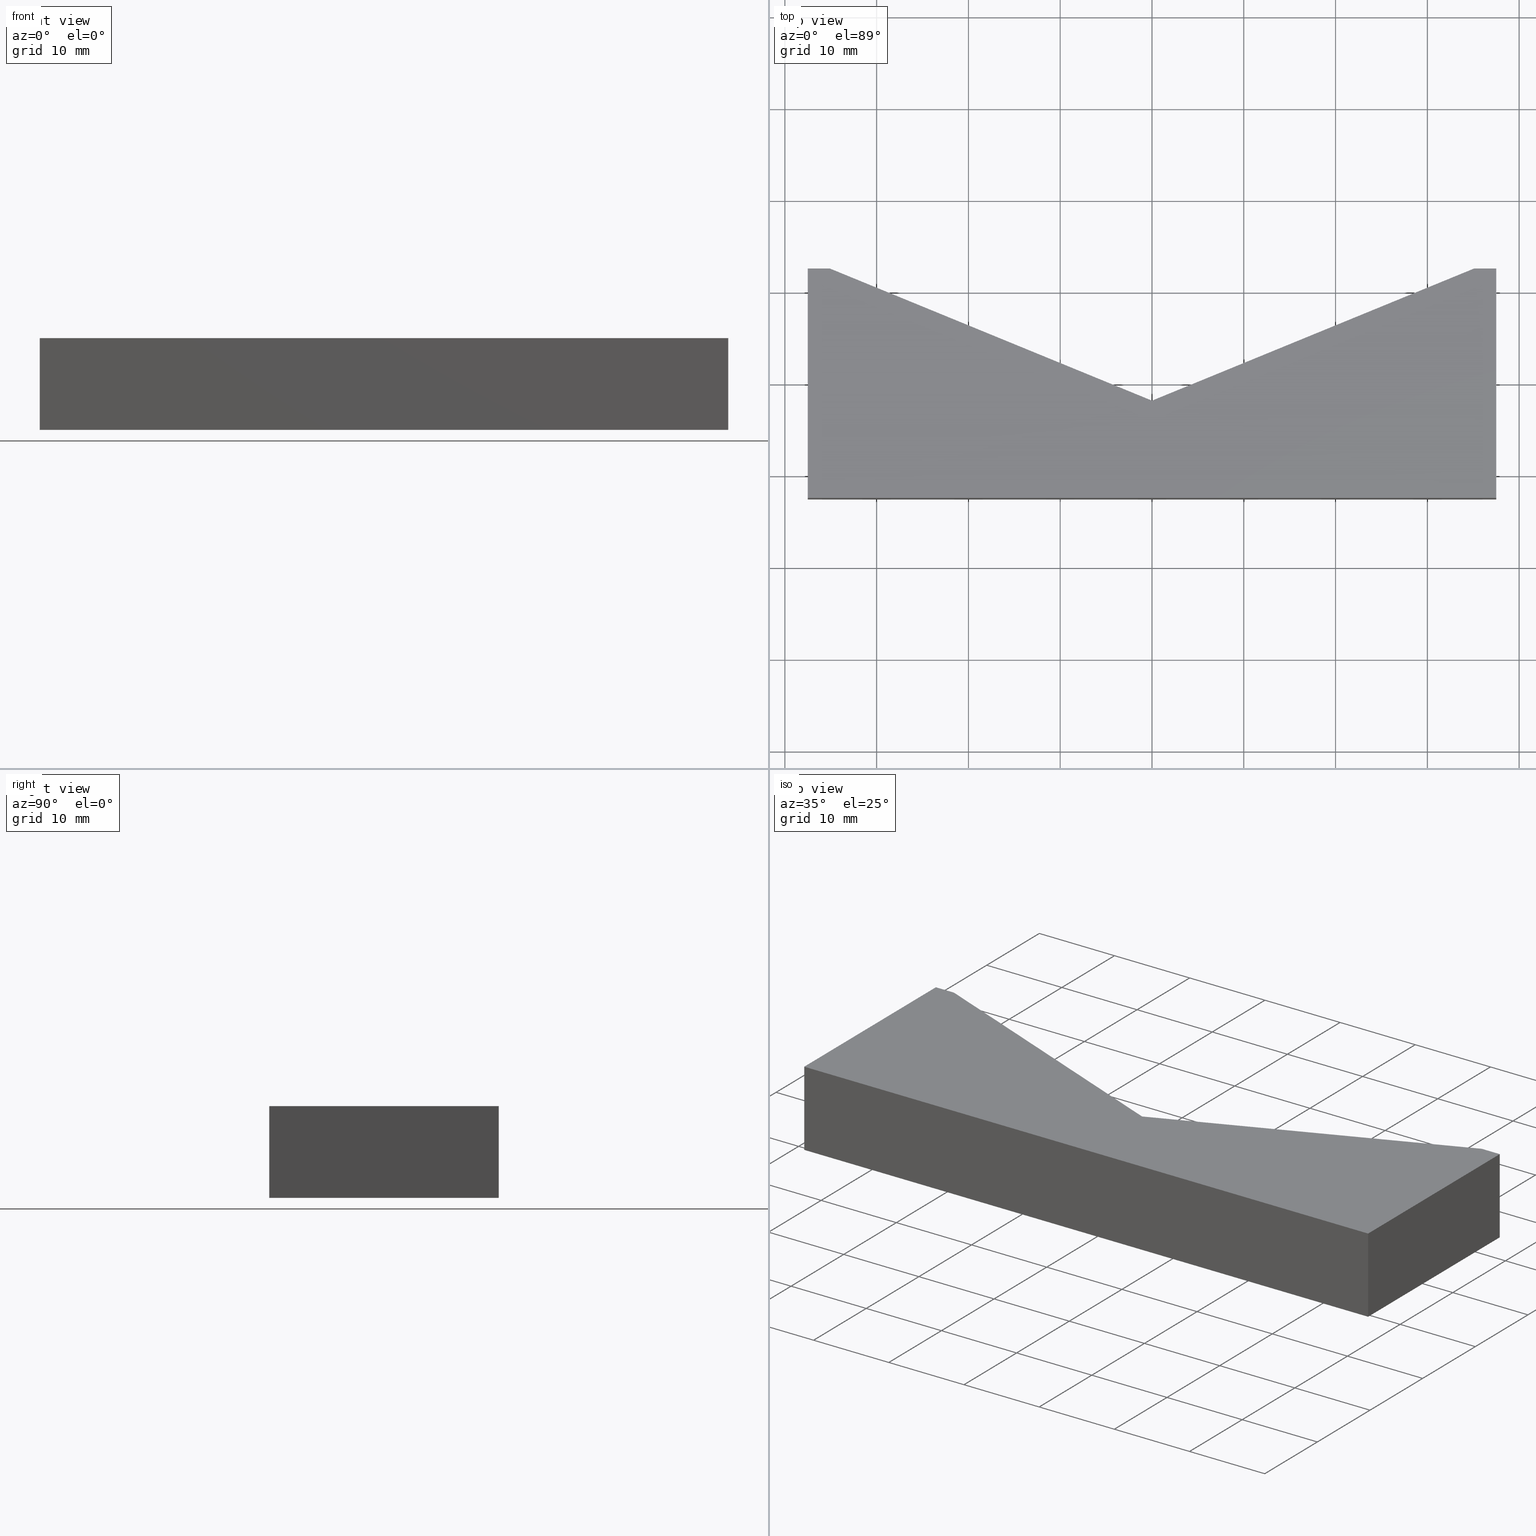
[diagram: canonical four-view strip — front | top / right | iso, engineering-drawing reading convention]
A machine part, canonical four-view strip (front | top / right | iso — engineering-drawing reading convention). The complete STEP part file that produces these views, byte-faithful:
ISO-10303-21;
HEADER;
/* Generated by software containing ST-Developer
 * from STEP Tools, Inc. (www.steptools.com) 
 */

FILE_DESCRIPTION(
/* description */ (''),
/* implementation_level */ '2;1');

FILE_NAME(
/* name */ 'E_3_01_10_18_00_WKZ-0167.stp',
/* time_stamp */ '2025-11-24T12:38:30+01:00',
/* author */ ('d.fischer'),
/* organization */ (''),
/* preprocessor_version */ 'ST-DEVELOPER v20',
/* originating_system */ 'Autodesk Inventor 2025',
/* authorisation */ '');

FILE_SCHEMA (('AUTOMOTIVE_DESIGN { 1 0 10303 214 3 1 1 }'));
ENDSEC;

DATA;
#10=MECHANICAL_DESIGN_GEOMETRIC_PRESENTATION_REPRESENTATION('',(#14,#15),
#292);
#11=SHAPE_REPRESENTATION_RELATIONSHIP('SRR','None',#299,#12);
#12=ADVANCED_BREP_SHAPE_REPRESENTATION('',(#13),#291);
#13=MANIFOLD_SOLID_BREP('Volumenk\X\F6rper1',#171);
#14=STYLED_ITEM('',(#309),#166);
#15=STYLED_ITEM('',(#308),#13);
#16=FACE_OUTER_BOUND('',#25,.T.);
#17=FACE_OUTER_BOUND('',#26,.T.);
#18=FACE_OUTER_BOUND('',#27,.T.);
#19=FACE_OUTER_BOUND('',#28,.T.);
#20=FACE_OUTER_BOUND('',#29,.T.);
#21=FACE_OUTER_BOUND('',#30,.T.);
#22=FACE_OUTER_BOUND('',#31,.T.);
#23=FACE_OUTER_BOUND('',#32,.T.);
#24=FACE_OUTER_BOUND('',#33,.T.);
#25=EDGE_LOOP('',(#111,#112,#113,#114,#115,#116,#117));
#26=EDGE_LOOP('',(#118,#119,#120,#121));
#27=EDGE_LOOP('',(#122,#123,#124,#125));
#28=EDGE_LOOP('',(#126,#127,#128,#129));
#29=EDGE_LOOP('',(#130,#131,#132,#133));
#30=EDGE_LOOP('',(#134,#135,#136,#137));
#31=EDGE_LOOP('',(#138,#139,#140,#141));
#32=EDGE_LOOP('',(#142,#143,#144,#145));
#33=EDGE_LOOP('',(#146,#147,#148,#149,#150,#151,#152));
#34=LINE('',#248,#55);
#35=LINE('',#250,#56);
#36=LINE('',#252,#57);
#37=LINE('',#254,#58);
#38=LINE('',#256,#59);
#39=LINE('',#258,#60);
#40=LINE('',#259,#61);
#41=LINE('',#263,#62);
#42=LINE('',#264,#63);
#43=LINE('',#265,#64);
#44=LINE('',#268,#65);
#45=LINE('',#269,#66);
#46=LINE('',#272,#67);
#47=LINE('',#273,#68);
#48=LINE('',#276,#69);
#49=LINE('',#277,#70);
#50=LINE('',#280,#71);
#51=LINE('',#281,#72);
#52=LINE('',#284,#73);
#53=LINE('',#285,#74);
#54=LINE('',#287,#75);
#55=VECTOR('',#207,10.);
#56=VECTOR('',#208,10.);
#57=VECTOR('',#209,10.);
#58=VECTOR('',#210,10.);
#59=VECTOR('',#211,10.);
#60=VECTOR('',#212,10.);
#61=VECTOR('',#213,10.);
#62=VECTOR('',#216,10.);
#63=VECTOR('',#217,10.);
#64=VECTOR('',#218,10.);
#65=VECTOR('',#221,10.);
#66=VECTOR('',#222,10.);
#67=VECTOR('',#225,10.);
#68=VECTOR('',#226,10.);
#69=VECTOR('',#229,10.);
#70=VECTOR('',#230,10.);
#71=VECTOR('',#233,10.);
#72=VECTOR('',#234,10.);
#73=VECTOR('',#237,10.);
#74=VECTOR('',#238,10.);
#75=VECTOR('',#241,10.);
#76=VERTEX_POINT('',#246);
#77=VERTEX_POINT('',#247);
#78=VERTEX_POINT('',#249);
#79=VERTEX_POINT('',#251);
#80=VERTEX_POINT('',#253);
#81=VERTEX_POINT('',#255);
#82=VERTEX_POINT('',#257);
#83=VERTEX_POINT('',#261);
#84=VERTEX_POINT('',#262);
#85=VERTEX_POINT('',#267);
#86=VERTEX_POINT('',#271);
#87=VERTEX_POINT('',#275);
#88=VERTEX_POINT('',#279);
#89=VERTEX_POINT('',#283);
#90=EDGE_CURVE('',#76,#77,#34,.T.);
#91=EDGE_CURVE('',#78,#76,#35,.T.);
#92=EDGE_CURVE('',#79,#78,#36,.T.);
#93=EDGE_CURVE('',#80,#79,#37,.T.);
#94=EDGE_CURVE('',#81,#80,#38,.T.);
#95=EDGE_CURVE('',#82,#81,#39,.T.);
#96=EDGE_CURVE('',#77,#82,#40,.T.);
#97=EDGE_CURVE('',#83,#84,#41,.T.);
#98=EDGE_CURVE('',#79,#84,#42,.T.);
#99=EDGE_CURVE('',#83,#78,#43,.T.);
#100=EDGE_CURVE('',#84,#85,#44,.T.);
#101=EDGE_CURVE('',#80,#85,#45,.T.);
#102=EDGE_CURVE('',#85,#86,#46,.T.);
#103=EDGE_CURVE('',#81,#86,#47,.T.);
#104=EDGE_CURVE('',#86,#87,#48,.T.);
#105=EDGE_CURVE('',#82,#87,#49,.T.);
#106=EDGE_CURVE('',#87,#88,#50,.T.);
#107=EDGE_CURVE('',#77,#88,#51,.T.);
#108=EDGE_CURVE('',#88,#89,#52,.T.);
#109=EDGE_CURVE('',#76,#89,#53,.T.);
#110=EDGE_CURVE('',#89,#83,#54,.T.);
#111=ORIENTED_EDGE('',*,*,#90,.F.);
#112=ORIENTED_EDGE('',*,*,#91,.F.);
#113=ORIENTED_EDGE('',*,*,#92,.F.);
#114=ORIENTED_EDGE('',*,*,#93,.F.);
#115=ORIENTED_EDGE('',*,*,#94,.F.);
#116=ORIENTED_EDGE('',*,*,#95,.F.);
#117=ORIENTED_EDGE('',*,*,#96,.F.);
#118=ORIENTED_EDGE('',*,*,#97,.T.);
#119=ORIENTED_EDGE('',*,*,#98,.F.);
#120=ORIENTED_EDGE('',*,*,#92,.T.);
#121=ORIENTED_EDGE('',*,*,#99,.F.);
#122=ORIENTED_EDGE('',*,*,#100,.T.);
#123=ORIENTED_EDGE('',*,*,#101,.F.);
#124=ORIENTED_EDGE('',*,*,#93,.T.);
#125=ORIENTED_EDGE('',*,*,#98,.T.);
#126=ORIENTED_EDGE('',*,*,#102,.T.);
#127=ORIENTED_EDGE('',*,*,#103,.F.);
#128=ORIENTED_EDGE('',*,*,#94,.T.);
#129=ORIENTED_EDGE('',*,*,#101,.T.);
#130=ORIENTED_EDGE('',*,*,#104,.T.);
#131=ORIENTED_EDGE('',*,*,#105,.F.);
#132=ORIENTED_EDGE('',*,*,#95,.T.);
#133=ORIENTED_EDGE('',*,*,#103,.T.);
#134=ORIENTED_EDGE('',*,*,#106,.T.);
#135=ORIENTED_EDGE('',*,*,#107,.F.);
#136=ORIENTED_EDGE('',*,*,#96,.T.);
#137=ORIENTED_EDGE('',*,*,#105,.T.);
#138=ORIENTED_EDGE('',*,*,#108,.T.);
#139=ORIENTED_EDGE('',*,*,#109,.F.);
#140=ORIENTED_EDGE('',*,*,#90,.T.);
#141=ORIENTED_EDGE('',*,*,#107,.T.);
#142=ORIENTED_EDGE('',*,*,#110,.T.);
#143=ORIENTED_EDGE('',*,*,#99,.T.);
#144=ORIENTED_EDGE('',*,*,#91,.T.);
#145=ORIENTED_EDGE('',*,*,#109,.T.);
#146=ORIENTED_EDGE('',*,*,#97,.F.);
#147=ORIENTED_EDGE('',*,*,#110,.F.);
#148=ORIENTED_EDGE('',*,*,#108,.F.);
#149=ORIENTED_EDGE('',*,*,#106,.F.);
#150=ORIENTED_EDGE('',*,*,#104,.F.);
#151=ORIENTED_EDGE('',*,*,#102,.F.);
#152=ORIENTED_EDGE('',*,*,#100,.F.);
#153=PLANE('',#194);
#154=PLANE('',#195);
#155=PLANE('',#196);
#156=PLANE('',#197);
#157=PLANE('',#198);
#158=PLANE('',#199);
#159=PLANE('',#200);
#160=PLANE('',#201);
#161=PLANE('',#202);
#162=ADVANCED_FACE('',(#16),#153,.F.);
#163=ADVANCED_FACE('',(#17),#154,.T.);
#164=ADVANCED_FACE('',(#18),#155,.T.);
#165=ADVANCED_FACE('',(#19),#156,.T.);
#166=ADVANCED_FACE('',(#20),#157,.T.);
#167=ADVANCED_FACE('',(#21),#158,.T.);
#168=ADVANCED_FACE('',(#22),#159,.T.);
#169=ADVANCED_FACE('',(#23),#160,.T.);
#170=ADVANCED_FACE('',(#24),#161,.T.);
#171=CLOSED_SHELL('',(#162,#163,#164,#165,#166,#167,#168,#169,#170));
#172=DERIVED_UNIT_ELEMENT(#175,1.);
#173=DERIVED_UNIT_ELEMENT(#294,-3.);
#174=DIMENSIONAL_EXPONENTS(0.,1.,0.,0.,0.,0.,0.);
#175=(
CONVERSION_BASED_UNIT('gram',#177)
MASS_UNIT()
NAMED_UNIT(#174)
);
#176=(
MASS_UNIT()
NAMED_UNIT(*)
SI_UNIT(.KILO.,.GRAM.)
);
#177=MASS_MEASURE_WITH_UNIT(MASS_MEASURE(0.001),#176);
#178=DERIVED_UNIT((#172,#173));
#179=MEASURE_REPRESENTATION_ITEM('density measure',
POSITIVE_RATIO_MEASURE(8.03),#178);
#180=PROPERTY_DEFINITION_REPRESENTATION(#185,#182);
#181=PROPERTY_DEFINITION_REPRESENTATION(#186,#183);
#182=REPRESENTATION('material name',(#184),#291);
#183=REPRESENTATION('density',(#179),#291);
#184=DESCRIPTIVE_REPRESENTATION_ITEM('1.4301','1.4301');
#185=PROPERTY_DEFINITION('material property','material name',#301);
#186=PROPERTY_DEFINITION('material property','density of part',#301);
#187=DATE_TIME_ROLE('creation_date');
#188=APPLIED_DATE_AND_TIME_ASSIGNMENT(#189,#187,(#301));
#189=DATE_AND_TIME(#190,#191);
#190=CALENDAR_DATE(2011,17,10);
#191=LOCAL_TIME(0,0,0.,#192);
#192=COORDINATED_UNIVERSAL_TIME_OFFSET(0,0,.BEHIND.);
#193=AXIS2_PLACEMENT_3D('',#244,#203,#204);
#194=AXIS2_PLACEMENT_3D('',#245,#205,#206);
#195=AXIS2_PLACEMENT_3D('',#260,#214,#215);
#196=AXIS2_PLACEMENT_3D('',#266,#219,#220);
#197=AXIS2_PLACEMENT_3D('',#270,#223,#224);
#198=AXIS2_PLACEMENT_3D('',#274,#227,#228);
#199=AXIS2_PLACEMENT_3D('',#278,#231,#232);
#200=AXIS2_PLACEMENT_3D('',#282,#235,#236);
#201=AXIS2_PLACEMENT_3D('',#286,#239,#240);
#202=AXIS2_PLACEMENT_3D('',#288,#242,#243);
#203=DIRECTION('axis',(0.,0.,1.));
#204=DIRECTION('refdir',(1.,0.,0.));
#205=DIRECTION('center_axis',(0.,0.,1.));
#206=DIRECTION('ref_axis',(1.,0.,0.));
#207=DIRECTION('',(-1.,0.,0.));
#208=DIRECTION('',(-0.925168618374746,0.379556356256306,0.));
#209=DIRECTION('',(-0.925168618374746,-0.379556356256306,0.));
#210=DIRECTION('',(-1.,0.,0.));
#211=DIRECTION('',(0.,1.,0.));
#212=DIRECTION('',(1.,0.,0.));
#213=DIRECTION('',(0.,-1.,0.));
#214=DIRECTION('center_axis',(-0.379556356256306,0.925168618374746,0.));
#215=DIRECTION('ref_axis',(0.,0.,1.));
#216=DIRECTION('',(0.925168618374746,0.379556356256306,0.));
#217=DIRECTION('',(0.,0.,1.));
#218=DIRECTION('',(0.,0.,-1.));
#219=DIRECTION('center_axis',(0.,1.,0.));
#220=DIRECTION('ref_axis',(0.,0.,1.));
#221=DIRECTION('',(1.,0.,0.));
#222=DIRECTION('',(0.,0.,1.));
#223=DIRECTION('center_axis',(1.,0.,0.));
#224=DIRECTION('ref_axis',(0.,0.,-1.));
#225=DIRECTION('',(0.,-1.,0.));
#226=DIRECTION('',(0.,0.,1.));
#227=DIRECTION('center_axis',(0.,-1.,0.));
#228=DIRECTION('ref_axis',(0.,0.,-1.));
#229=DIRECTION('',(-1.,0.,0.));
#230=DIRECTION('',(0.,0.,1.));
#231=DIRECTION('center_axis',(-1.,0.,0.));
#232=DIRECTION('ref_axis',(0.,0.,1.));
#233=DIRECTION('',(0.,1.,0.));
#234=DIRECTION('',(0.,0.,1.));
#235=DIRECTION('center_axis',(0.,1.,0.));
#236=DIRECTION('ref_axis',(0.,0.,1.));
#237=DIRECTION('',(1.,0.,0.));
#238=DIRECTION('',(0.,0.,1.));
#239=DIRECTION('center_axis',(0.379556356256306,0.925168618374746,0.));
#240=DIRECTION('ref_axis',(0.,0.,1.));
#241=DIRECTION('',(0.925168618374746,-0.379556356256306,0.));
#242=DIRECTION('center_axis',(0.,0.,1.));
#243=DIRECTION('ref_axis',(1.,0.,0.));
#244=CARTESIAN_POINT('',(0.,0.,0.));
#245=CARTESIAN_POINT('Origin',(-9.0205620750794E-16,-2.31111807193507,-5.));
#246=CARTESIAN_POINT('',(-35.1,12.5,-5.));
#247=CARTESIAN_POINT('',(-37.5,12.5,-5.));
#248=CARTESIAN_POINT('',(-35.1,12.5,-5.));
#249=CARTESIAN_POINT('',(0.,-1.9,-5.));
#250=CARTESIAN_POINT('',(0.,-1.9,-5.));
#251=CARTESIAN_POINT('',(35.1,12.5,-5.));
#252=CARTESIAN_POINT('',(35.1,12.5,-5.));
#253=CARTESIAN_POINT('',(37.5,12.5,-5.));
#254=CARTESIAN_POINT('',(37.5,12.5,-5.));
#255=CARTESIAN_POINT('',(37.5,-12.5,-5.));
#256=CARTESIAN_POINT('',(37.5,-12.5,-5.));
#257=CARTESIAN_POINT('',(-37.5,-12.5,-5.));
#258=CARTESIAN_POINT('',(-37.5,-12.5,-5.));
#259=CARTESIAN_POINT('',(-37.5,12.5,-5.));
#260=CARTESIAN_POINT('Origin',(0.,-1.9,0.));
#261=CARTESIAN_POINT('',(0.,-1.9,5.));
#262=CARTESIAN_POINT('',(35.1,12.5,5.));
#263=CARTESIAN_POINT('',(35.1,12.5,5.));
#264=CARTESIAN_POINT('',(35.1,12.5,0.));
#265=CARTESIAN_POINT('',(0.,-1.9,0.));
#266=CARTESIAN_POINT('Origin',(35.1,12.5,0.));
#267=CARTESIAN_POINT('',(37.5,12.5,5.));
#268=CARTESIAN_POINT('',(37.5,12.5,5.));
#269=CARTESIAN_POINT('',(37.5,12.5,0.));
#270=CARTESIAN_POINT('Origin',(37.5,12.5,0.));
#271=CARTESIAN_POINT('',(37.5,-12.5,5.));
#272=CARTESIAN_POINT('',(37.5,-12.5,5.));
#273=CARTESIAN_POINT('',(37.5,-12.5,0.));
#274=CARTESIAN_POINT('Origin',(37.5,-12.5,0.));
#275=CARTESIAN_POINT('',(-37.5,-12.5,5.));
#276=CARTESIAN_POINT('',(-37.5,-12.5,5.));
#277=CARTESIAN_POINT('',(-37.5,-12.5,0.));
#278=CARTESIAN_POINT('Origin',(-37.5,-12.5,0.));
#279=CARTESIAN_POINT('',(-37.5,12.5,5.));
#280=CARTESIAN_POINT('',(-37.5,12.5,5.));
#281=CARTESIAN_POINT('',(-37.5,12.5,0.));
#282=CARTESIAN_POINT('Origin',(-37.5,12.5,0.));
#283=CARTESIAN_POINT('',(-35.1,12.5,5.));
#284=CARTESIAN_POINT('',(-35.1,12.5,5.));
#285=CARTESIAN_POINT('',(-35.1,12.5,0.));
#286=CARTESIAN_POINT('Origin',(-35.1,12.5,0.));
#287=CARTESIAN_POINT('',(0.,-1.9,5.));
#288=CARTESIAN_POINT('Origin',(-5.55111512312578E-16,-2.31111807193507,
5.));
#289=UNCERTAINTY_MEASURE_WITH_UNIT(LENGTH_MEASURE(0.01),#293,
'DISTANCE_ACCURACY_VALUE',
'Maximum model space distance between geometric entities at asserted c
onnectivities');
#290=UNCERTAINTY_MEASURE_WITH_UNIT(LENGTH_MEASURE(0.01),#293,
'DISTANCE_ACCURACY_VALUE',
'Maximum model space distance between geometric entities at asserted c
onnectivities');
#291=(
GEOMETRIC_REPRESENTATION_CONTEXT(3)
GLOBAL_UNCERTAINTY_ASSIGNED_CONTEXT((#289))
GLOBAL_UNIT_ASSIGNED_CONTEXT((#293,#295,#296))
REPRESENTATION_CONTEXT('','3D')
);
#292=(
GEOMETRIC_REPRESENTATION_CONTEXT(3)
GLOBAL_UNCERTAINTY_ASSIGNED_CONTEXT((#290))
GLOBAL_UNIT_ASSIGNED_CONTEXT((#293,#295,#296))
REPRESENTATION_CONTEXT('','3D')
);
#293=(
LENGTH_UNIT()
NAMED_UNIT(*)
SI_UNIT(.MILLI.,.METRE.)
);
#294=(
LENGTH_UNIT()
NAMED_UNIT(*)
SI_UNIT(.CENTI.,.METRE.)
);
#295=(
NAMED_UNIT(*)
PLANE_ANGLE_UNIT()
SI_UNIT($,.RADIAN.)
);
#296=(
NAMED_UNIT(*)
SI_UNIT($,.STERADIAN.)
SOLID_ANGLE_UNIT()
);
#297=SHAPE_DEFINITION_REPRESENTATION(#298,#299);
#298=PRODUCT_DEFINITION_SHAPE('',$,#301);
#299=SHAPE_REPRESENTATION('',(#193),#291);
#300=PRODUCT_DEFINITION_CONTEXT('part definition',#305,'design');
#301=PRODUCT_DEFINITION('WKZ-0167','E_3_01_10_18_00_WKZ-0167',#302,#300);
#302=PRODUCT_DEFINITION_FORMATION('',$,#307);
#303=PRODUCT_RELATED_PRODUCT_CATEGORY('E_3_01_10_18_00_WKZ-0167',
'E_3_01_10_18_00_WKZ-0167',(#307));
#304=APPLICATION_PROTOCOL_DEFINITION('international standard',
'automotive_design',2009,#305);
#305=APPLICATION_CONTEXT(
'Core Data for Automotive Mechanical Design Process');
#306=PRODUCT_CONTEXT('part definition',#305,'mechanical');
#307=PRODUCT('WKZ-0167','E_3_01_10_18_00_WKZ-0167',$,(#306));
#308=PRESENTATION_STYLE_ASSIGNMENT((#310));
#309=PRESENTATION_STYLE_ASSIGNMENT((#311));
#310=SURFACE_STYLE_USAGE(.BOTH.,#314);
#311=SURFACE_STYLE_USAGE(.BOTH.,#315);
#312=SURFACE_STYLE_RENDERING_WITH_PROPERTIES($,#322,(#313));
#313=SURFACE_STYLE_TRANSPARENT(0.);
#314=SURFACE_SIDE_STYLE('',(#316,#312));
#315=SURFACE_SIDE_STYLE('',(#317));
#316=SURFACE_STYLE_FILL_AREA(#318);
#317=SURFACE_STYLE_FILL_AREA(#319);
#318=FILL_AREA_STYLE('',(#320));
#319=FILL_AREA_STYLE('',(#321));
#320=FILL_AREA_STYLE_COLOUR('',#322);
#321=FILL_AREA_STYLE_COLOUR('',#323);
#322=COLOUR_RGB('',0.92156862745098,0.92156862745098,0.92156862745098);
#323=COLOUR_RGB('',0.16078431372549,0.16078431372549,0.16078431372549);
ENDSEC;
END-ISO-10303-21;
